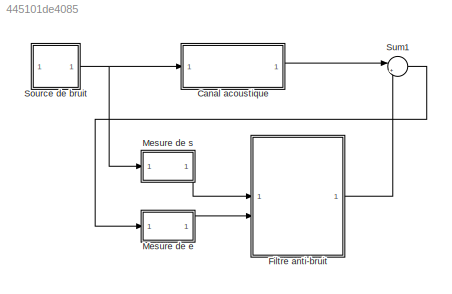
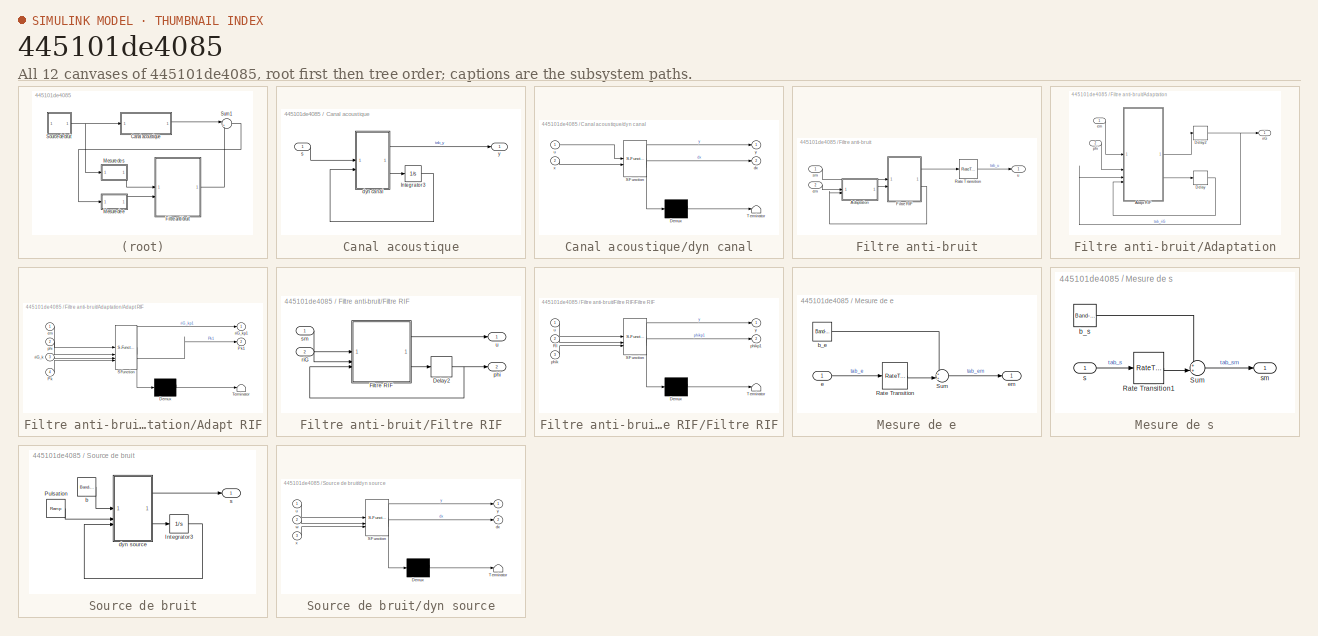
[diagram: thumbnail index - all 12 canvases of the model, root first then tree order]
MODEL slx_445101de4085
KIND model
CONFIG AbsTol = auto
CONFIG EnableMultiTasking = on
CONFIG FixedStep = simu.dt
CONFIG MaxStep = auto
CONFIG MinStep = auto
CONFIG RelTol = 1e-3
CONFIG SampleTimeConstraint = Unconstrained
CONFIG SolverName = ode4
CONFIG StartTime = 0.0
CONFIG StopTime = simu.hor
BLOCK [SubSystem] Canal acoustique
BLOCK [Integrator] Canal acoustique/Integrator3
  InitialCondition = [0;0]
BLOCK [SubSystem] Canal acoustique/dyn canal
  ErrorFcn = Stateflow.Translate.translate
  PermitHierarchicalResolution = ExplicitOnly
  SFBlockType = MATLAB Function
  TreatAsAtomicUnit = on
BLOCK [Demux] Canal acoustique/dyn canal/ Demux 
  Outputs = 1
BLOCK [S-Function] Canal acoustique/dyn canal/ SFunction 
  EnableBusSupport = on
  FunctionName = sf_sfun
  Parameters = canal
  PortCounts = [2 3]
  SFcnIsStateOwnerBlock = off
  SFunctionDeploymentMode = off
  Tag = Stateflow S-Function 3
BLOCK [Terminator] Canal acoustique/dyn canal/ Terminator 
BLOCK [Outport] Canal acoustique/dyn canal/dx
  Port = 2
BLOCK [Inport] Canal acoustique/dyn canal/u
BLOCK [Inport] Canal acoustique/dyn canal/x
  Port = 2
BLOCK [Outport] Canal acoustique/dyn canal/y
BLOCK [Inport] Canal acoustique/s
BLOCK [Outport] Canal acoustique/y
BLOCK [SubSystem] Filtre anti-bruit
BLOCK [SubSystem] Filtre anti-bruit/Adaptation
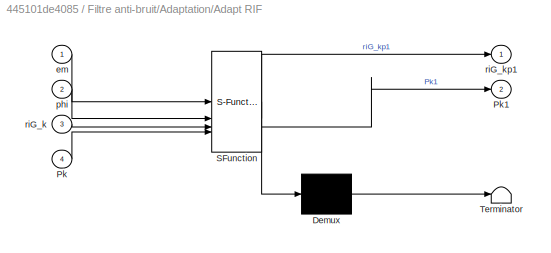
BLOCK [SubSystem] Filtre anti-bruit/Adaptation/Adapt RIF
  ErrorFcn = Stateflow.Translate.translate
  PermitHierarchicalResolution = ExplicitOnly
  SFBlockType = MATLAB Function
  TreatAsAtomicUnit = on
BLOCK [Demux] Filtre anti-bruit/Adaptation/Adapt RIF/ Demux 
  Outputs = 1
BLOCK [S-Function] Filtre anti-bruit/Adaptation/Adapt RIF/ SFunction 
  EnableBusSupport = on
  FunctionName = sf_sfun
  Parameters = filtre
  PortCounts = [4 3]
  SFcnIsStateOwnerBlock = off
  SFunctionDeploymentMode = off
  Tag = Stateflow S-Function 2
BLOCK [Terminator] Filtre anti-bruit/Adaptation/Adapt RIF/ Terminator 
BLOCK [Inport] Filtre anti-bruit/Adaptation/Adapt RIF/Pk
  Port = 4
BLOCK [Outport] Filtre anti-bruit/Adaptation/Adapt RIF/Pk1
  Port = 2
BLOCK [Inport] Filtre anti-bruit/Adaptation/Adapt RIF/em
BLOCK [Inport] Filtre anti-bruit/Adaptation/Adapt RIF/phi
  Port = 2
BLOCK [Inport] Filtre anti-bruit/Adaptation/Adapt RIF/riG_k
  Port = 3
BLOCK [Outport] Filtre anti-bruit/Adaptation/Adapt RIF/riG_kp1
BLOCK [Delay] Filtre anti-bruit/Adaptation/Delay
  DelayLength = 1
  InitialCondition = filtreRIF.P_ini
  InputPortMap = u0
  SampleTime = filtre.dt
BLOCK [Delay] Filtre anti-bruit/Adaptation/Delay2
  DelayLength = 1
  InitialCondition = filtre.riG_ini
  InputPortMap = u0
  SampleTime = filtre.dt
BLOCK [Inport] Filtre anti-bruit/Adaptation/em
BLOCK [Inport] Filtre anti-bruit/Adaptation/phi
  Port = 2
BLOCK [Outport] Filtre anti-bruit/Adaptation/riG
BLOCK [SubSystem] Filtre anti-bruit/Filtre RIF
BLOCK [Delay] Filtre anti-bruit/Filtre RIF/Delay2
  DelayLength = 1
  InitialCondition = zeros(filtre.Nx,1)
  InputPortMap = u0
  SampleTime = filtre.dt
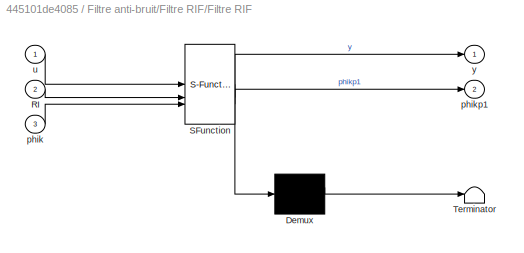
BLOCK [SubSystem] Filtre anti-bruit/Filtre RIF/Filtre RIF
  ErrorFcn = Stateflow.Translate.translate
  PermitHierarchicalResolution = ExplicitOnly
  SFBlockType = MATLAB Function
  TreatAsAtomicUnit = on
BLOCK [Demux] Filtre anti-bruit/Filtre RIF/Filtre RIF/ Demux 
  Outputs = 1
BLOCK [S-Function] Filtre anti-bruit/Filtre RIF/Filtre RIF/ SFunction 
  EnableBusSupport = on
  FunctionName = sf_sfun
  PortCounts = [3 3]
  SFcnIsStateOwnerBlock = off
  SFunctionDeploymentMode = off
  Tag = Stateflow S-Function 4
BLOCK [Terminator] Filtre anti-bruit/Filtre RIF/Filtre RIF/ Terminator 
BLOCK [Inport] Filtre anti-bruit/Filtre RIF/Filtre RIF/RI
  Port = 2
BLOCK [Inport] Filtre anti-bruit/Filtre RIF/Filtre RIF/phik
  Port = 3
BLOCK [Outport] Filtre anti-bruit/Filtre RIF/Filtre RIF/phikp1
  Port = 2
BLOCK [Inport] Filtre anti-bruit/Filtre RIF/Filtre RIF/u
BLOCK [Outport] Filtre anti-bruit/Filtre RIF/Filtre RIF/y
BLOCK [Outport] Filtre anti-bruit/Filtre RIF/phi
  Port = 2
BLOCK [Inport] Filtre anti-bruit/Filtre RIF/riG
  Port = 2
BLOCK [Inport] Filtre anti-bruit/Filtre RIF/sm
BLOCK [Outport] Filtre anti-bruit/Filtre RIF/u
BLOCK [RateTransition] Filtre anti-bruit/Rate Transition
  OutPortSampleTime = simu.dt
BLOCK [Inport] Filtre anti-bruit/em
  Port = 2
BLOCK [Inport] Filtre anti-bruit/sm
BLOCK [Outport] Filtre anti-bruit/u
BLOCK [SubSystem] Mesure de e
BLOCK [RateTransition] Mesure de e/Rate Transition
  OutPortSampleTime = filtre.dt
BLOCK [Sum] Mesure de e/Sum
  Inputs = ++|
BLOCK [Reference] Mesure de e/b_e  REF=simulink/Sources/Band-Limited
White Noise
  SourceBlock = simulink/Sources/Band-Limited\nWhite Noise
  SourceType = Band-Limited White Noise.
BLOCK [Inport] Mesure de e/e
BLOCK [Outport] Mesure de e/em
BLOCK [SubSystem] Mesure de s
BLOCK [RateTransition] Mesure de s/Rate Transition1
  OutPortSampleTime = filtre.dt
BLOCK [Sum] Mesure de s/Sum
  Inputs = ++|
BLOCK [Reference] Mesure de s/b_s  REF=simulink/Sources/Band-Limited
White Noise
  SourceBlock = simulink/Sources/Band-Limited\nWhite Noise
  SourceType = Band-Limited White Noise.
BLOCK [Inport] Mesure de s/s
BLOCK [Outport] Mesure de s/sm
BLOCK [SubSystem] Source de bruit
BLOCK [Integrator] Source de bruit/Integrator3
  InitialCondition = [0;0]
BLOCK [Reference] Source de bruit/Pulsation  REF=simulink/Sources/Ramp
  SourceBlock = simulink/Sources/Ramp
  SourceType = Ramp
BLOCK [Reference] Source de bruit/b  REF=simulink/Sources/Band-Limited
White Noise
  SourceBlock = simulink/Sources/Band-Limited\nWhite Noise
  SourceType = Band-Limited White Noise.
BLOCK [SubSystem] Source de bruit/dyn source
  ErrorFcn = Stateflow.Translate.translate
  PermitHierarchicalResolution = ExplicitOnly
  SFBlockType = MATLAB Function
  TreatAsAtomicUnit = on
BLOCK [Demux] Source de bruit/dyn source/ Demux 
  Outputs = 1
BLOCK [S-Function] Source de bruit/dyn source/ SFunction 
  EnableBusSupport = on
  FunctionName = sf_sfun
  Parameters = source
  PortCounts = [3 3]
  SFcnIsStateOwnerBlock = off
  SFunctionDeploymentMode = off
  Tag = Stateflow S-Function 1
BLOCK [Terminator] Source de bruit/dyn source/ Terminator 
BLOCK [Outport] Source de bruit/dyn source/dx
  Port = 2
BLOCK [Inport] Source de bruit/dyn source/u
BLOCK [Inport] Source de bruit/dyn source/w
  Port = 2
BLOCK [Inport] Source de bruit/dyn source/x
  Port = 3
BLOCK [Outport] Source de bruit/dyn source/y
BLOCK [Outport] Source de bruit/s
BLOCK [Sum] Sum1
  Inputs = |++
LINE Canal acoustique/Integrator3:1 -> Canal acoustique/dyn canal:2
LINE Canal acoustique/dyn canal:1 -> Canal acoustique/y:1
LINE Canal acoustique/dyn canal:2 -> Canal acoustique/Integrator3:1
LINE Canal acoustique/s:1 -> Canal acoustique/dyn canal:1
LINE Canal acoustique:1 -> Sum1:1
LINE Filtre anti-bruit/Adaptation/Adapt RIF:1 -> Filtre anti-bruit/Adaptation/Delay2:1
LINE Filtre anti-bruit/Adaptation/Adapt RIF:2 -> Filtre anti-bruit/Adaptation/Delay:1
NET Filtre anti-bruit/Adaptation/Delay2:1 -> Filtre anti-bruit/Adaptation/Adapt RIF:3, Filtre anti-bruit/Adaptation/riG:1
LINE Filtre anti-bruit/Adaptation/Delay:1 -> Filtre anti-bruit/Adaptation/Adapt RIF:4
LINE Filtre anti-bruit/Adaptation/em:1 -> Filtre anti-bruit/Adaptation/Adapt RIF:1
LINE Filtre anti-bruit/Adaptation/phi:1 -> Filtre anti-bruit/Adaptation/Adapt RIF:2
LINE Filtre anti-bruit/Adaptation:1 -> Filtre anti-bruit/Filtre RIF:2
NET Filtre anti-bruit/Filtre RIF/Delay2:1 -> Filtre anti-bruit/Filtre RIF/Filtre RIF:3, Filtre anti-bruit/Filtre RIF/phi:1
LINE Filtre anti-bruit/Filtre RIF/Filtre RIF:1 -> Filtre anti-bruit/Filtre RIF/u:1
LINE Filtre anti-bruit/Filtre RIF/Filtre RIF:2 -> Filtre anti-bruit/Filtre RIF/Delay2:1
LINE Filtre anti-bruit/Filtre RIF/riG:1 -> Filtre anti-bruit/Filtre RIF/Filtre RIF:2
LINE Filtre anti-bruit/Filtre RIF/sm:1 -> Filtre anti-bruit/Filtre RIF/Filtre RIF:1
LINE Filtre anti-bruit/Filtre RIF:1 -> Filtre anti-bruit/Rate Transition:1
LINE Filtre anti-bruit/Filtre RIF:2 -> Filtre anti-bruit/Adaptation:2
LINE Filtre anti-bruit/Rate Transition:1 -> Filtre anti-bruit/u:1
LINE Filtre anti-bruit/em:1 -> Filtre anti-bruit/Adaptation:1
LINE Filtre anti-bruit/sm:1 -> Filtre anti-bruit/Filtre RIF:1
LINE Filtre anti-bruit:1 -> Sum1:2
LINE Mesure de e/Rate Transition:1 -> Mesure de e/Sum:2
LINE Mesure de e/Sum:1 -> Mesure de e/em:1
LINE Mesure de e/b_e:1 -> Mesure de e/Sum:1
LINE Mesure de e/e:1 -> Mesure de e/Rate Transition:1
LINE Mesure de e:1 -> Filtre anti-bruit:2
LINE Mesure de s/Rate Transition1:1 -> Mesure de s/Sum:2
LINE Mesure de s/Sum:1 -> Mesure de s/sm:1
LINE Mesure de s/b_s:1 -> Mesure de s/Sum:1
LINE Mesure de s/s:1 -> Mesure de s/Rate Transition1:1
LINE Mesure de s:1 -> Filtre anti-bruit:1
LINE Source de bruit/Integrator3:1 -> Source de bruit/dyn source:3
LINE Source de bruit/Pulsation:1 -> Source de bruit/dyn source:2
LINE Source de bruit/b:1 -> Source de bruit/dyn source:1
LINE Source de bruit/dyn source:1 -> Source de bruit/s:1
LINE Source de bruit/dyn source:2 -> Source de bruit/Integrator3:1
NET Source de bruit:1 -> Canal acoustique:1, Mesure de s:1
LINE Sum1:1 -> Mesure de e:1
note: NET lines group one-source signal fan-out (src -> all destinations, sorted); 1:1 wires keep LINE
CHART Source de bruit/dyn source states=1 transitions=1
  STATE_LABEL 'eML_blk_kernel()'
  STATE_LABEL "SCRIPT:\nfunction [y,dx] = dyn_source(u,w,x,source)\n\n%-----------------------------------------------------------\n% bruit acoustique\n%-----------------------------------------------------------\n% u :\tbruit blanc normalisé\n% w :\tpulsation instantannée\n% x :\tvecteur d'état\n% source.xi :  amortissement\n% \n% y :\tbruit acoustique\n% dx :\tdérivée du vecteur  d'état\n%---------------------------------------...<+134ch>"
CHART Filtre anti-bruit/Adaptation/Adapt RIF states=1 transitions=1
  STATE_LABEL 'eML_blk_kernel()'
  STATE_LABEL "SCRIPT:\nfunction [riG_kp1,Pk1] = Adapt_rif(em,phi,riG_k,Pk,filtre)\n\n% [riG_kp1] = Adapt_rif(em,phi,riG_k,filtre);\n%-----------------------------------------------------------------------\n% Adapatation d'un filtre RIF\n%-----------------------------------------------------------------------\n% em :      signal à minimise\n% phi :     régresseur (vecteur d'état du filtre)\n% riG_k :\tréponse impulsionnel...<+1594ch>"
CHART Canal acoustique/dyn canal states=1 transitions=1
  STATE_LABEL 'eML_blk_kernel()'
  STATE_LABEL "SCRIPT:\nfunction [y,dx] = dyn_canal(u,x,canal)\n\n%-----------------------------------------------------------\n% canal acoustique\n%-----------------------------------------------------------\n% u :   bruit émis par la source\n% canal.w  :\tpulsation\n% canal.xi :\tamortissement\n% canal.g  :    gain \n%\n% y :   bruit transmis par le canal\n% dx :\tdérivée du vecteur  d'état\n%---------------------------------...<+171ch>"
CHART Filtre anti-bruit/Filtre RIF/Filtre RIF states=1 transitions=1
  STATE_LABEL 'eML_blk_kernel()'
  STATE_LABEL "SCRIPT:\nfunction [y,phikp1] = filtre_rif(u,RI,phik)\n\n% [y,phikp1] = filtre_rif(u,RI,phik);\n%-----------------------------------------------------------------------\n% Filtre RIF\n%-----------------------------------------------------------------------\n% u :       signal à filtrer\n% RI :      réponse impulsionnelle du filtre \n% phik :\trégresseur (vecteur d'état)\n% \n% y :       signal filtré\n% phikp1 ...<+179ch>"
CHART  states=0 transitions=0
CHART  states=0 transitions=0
CHART  states=0 transitions=0
CHART  states=0 transitions=0
